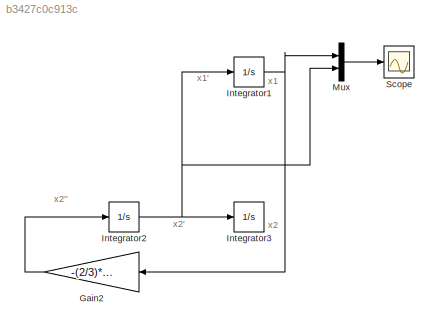
MODEL slx_b3427c0c913c
KIND model
CONFIG AbsTol = auto
CONFIG EnableMultiTasking = off
CONFIG FixedStep = auto
CONFIG InitFcn = m = 10;\nk = 100;\nr = 0.05;
CONFIG MaxStep = 0.01
CONFIG MinStep = auto
CONFIG RelTol = 1e-3
CONFIG SampleTimeConstraint = Unconstrained
CONFIG SolverName = VariableStepAuto
CONFIG StartTime = 0.0
CONFIG StopTime = 10.0
BLOCK [Gain] Gain2
  Gain = -(2/3)*(k/m)
  NameLocation = top
BLOCK [Integrator] Integrator1
BLOCK [Integrator] Integrator2
  InitialCondition = 2
BLOCK [Integrator] Integrator3
BLOCK [Mux] Mux
  DisplayOption = bar
  Inputs = 2
BLOCK [Scope] Scope
  Floating = off
  NumInputPorts = 1
  ScopeSpecificationString = Simulink.scopes.TimeScopeBlockCfg('CurrentConfiguration', extmgr.ConfigurationSet(extmgr.Configuration('Core','General UI',true),extmgr.Configuration('Core','Source UI',true),extmgr.Configuration('Sources','WiredSimulink',true),extmgr.Configuration('Visuals','Time Domain',true,'SerializedDisplays',{struct('MinYLimReal','-2.5','MaxYLimReal','2.5','YLabelReal','','MinYLimMag','0.00000','MaxYLimMag',...<+1440ch>
ANNOTATION (root): x1
ANNOTATION (root): x1'
ANNOTATION (root): x2
ANNOTATION (root): x2'
ANNOTATION (root): x2''
LINE Gain2:1 -> Integrator2:1
NET Integrator1:1 -> Gain2:1, Mux:1
NET Integrator2:1 -> Integrator1:1, Integrator3:1, Mux:2
LINE Mux:1 -> Scope:1
note: NET lines group one-source signal fan-out (src -> all destinations, sorted); 1:1 wires keep LINE
